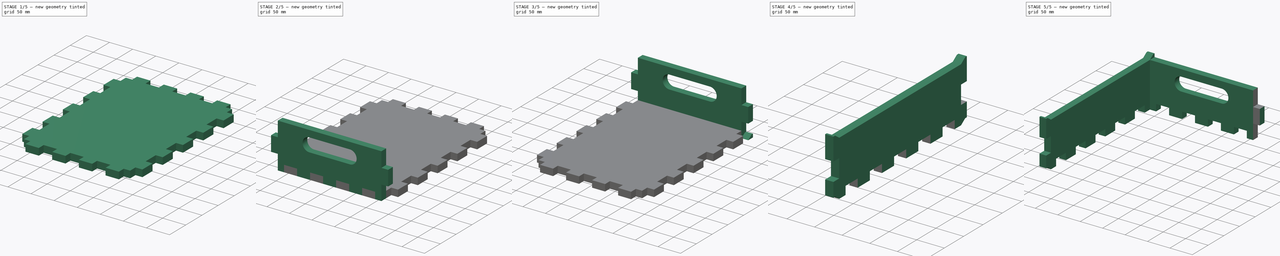
[diagram: build sequence overview — one tinted view per stage of 5, left to right]
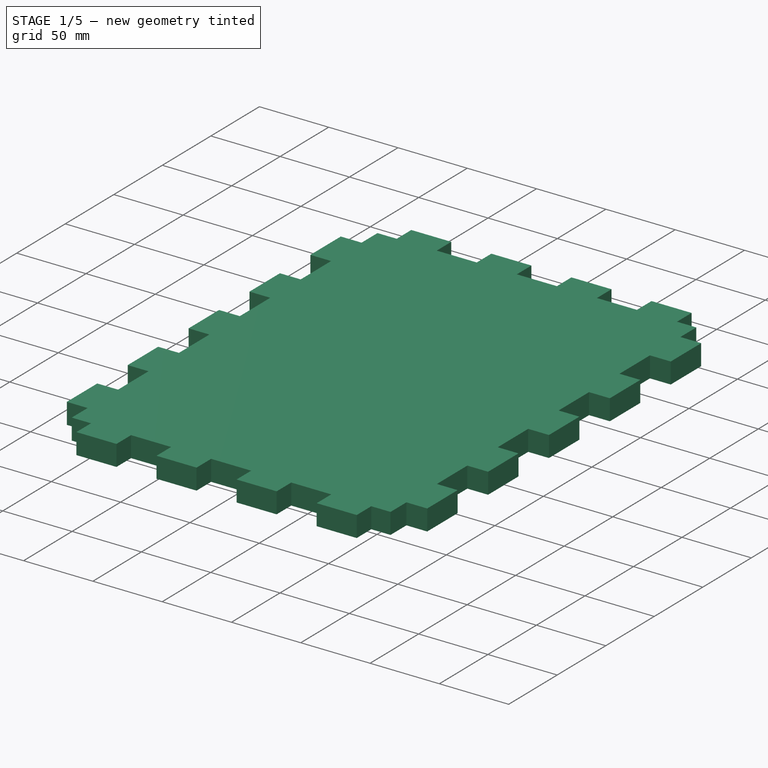
[diagram: stage 1 of 5 — iso view after this stage's code; geometry added in this stage tinted green]
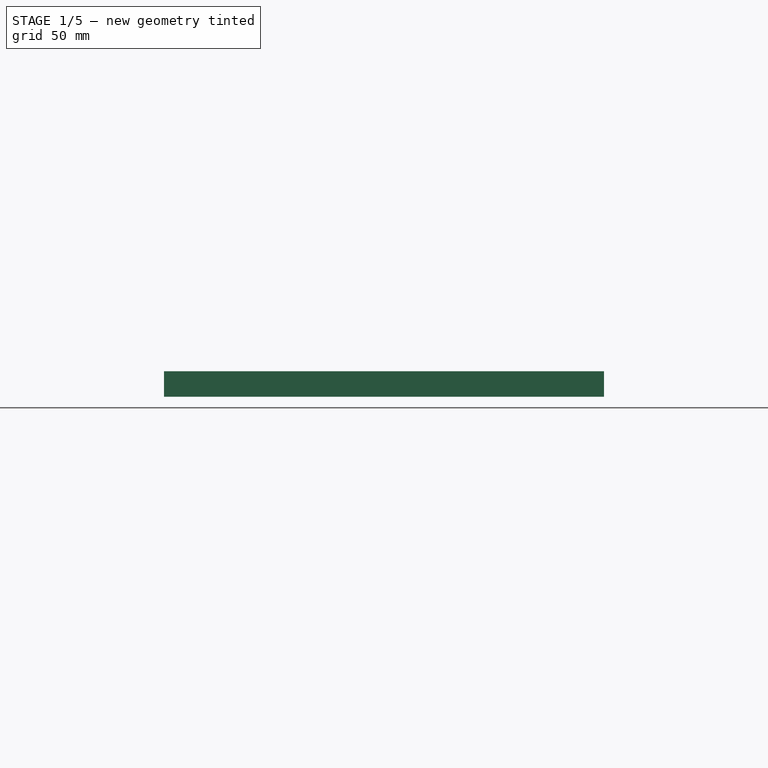
[diagram: stage 1 of 5 — front view after this stage's code; geometry added in this stage tinted green]
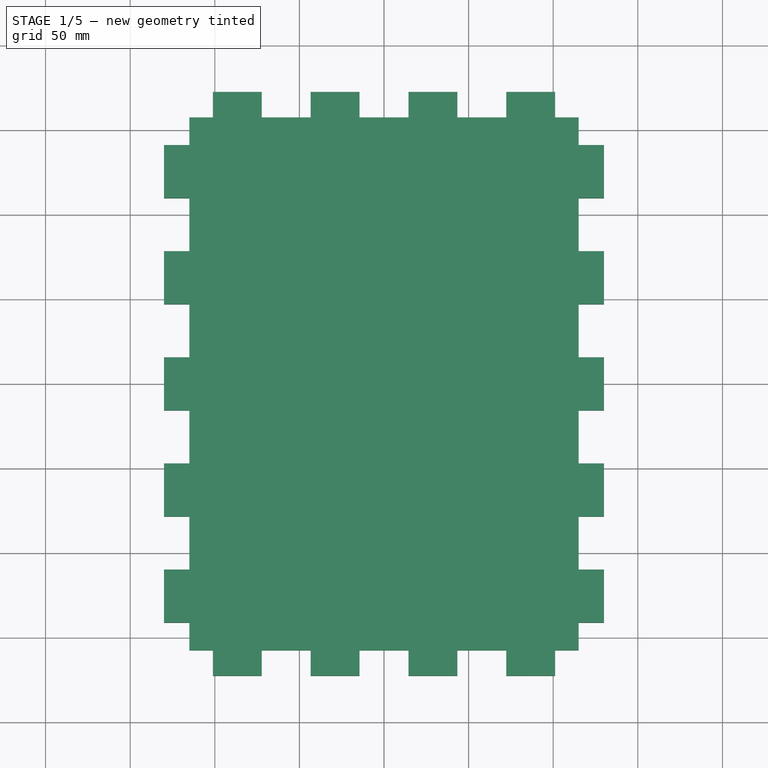
[diagram: stage 1 of 5 — top view after this stage's code; geometry added in this stage tinted green]
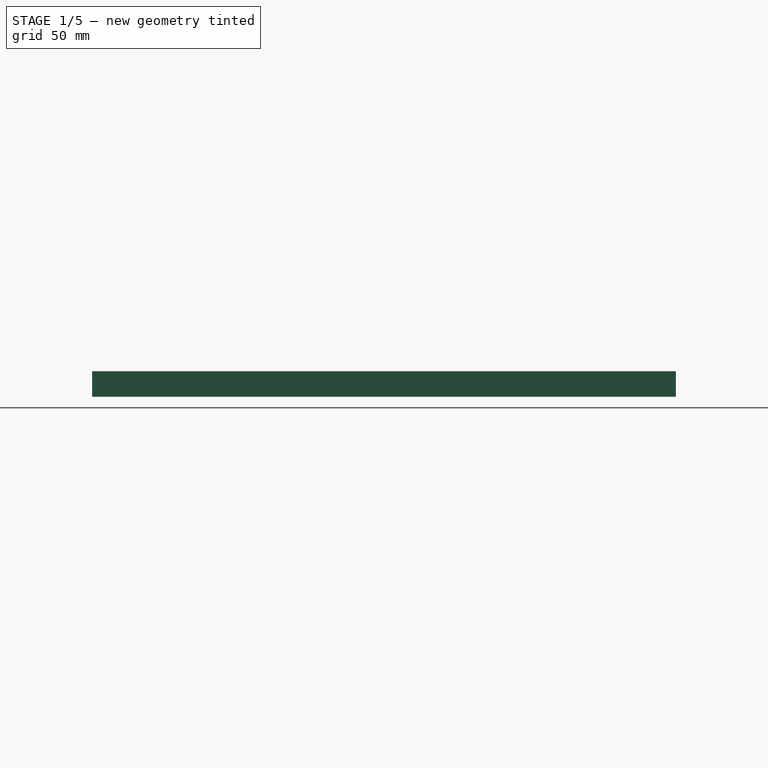
[diagram: stage 1 of 5 — right view after this stage's code; geometry added in this stage tinted green]
FCSTD DOCUMENT  (FreeCAD 0.20R29410 (Git))
Label: storage-box
License: Creative Commons Attribution-ShareAlike
LicenseURL: http://creativecommons.org/licenses/by-sa/4.0/
objects: Sketcher::SketchObject×7, Part::FeaturePython×7, PartDesign::LinearPattern×6, PartDesign::Pad×4, PartDesign::Body×4, Part::Mirroring×4, PartDesign::Pocket×3, PartDesign::MultiTransform×3, Part::Cut×2, Part::MultiFuse×2, App::FeaturePython×1, PartDesign::Fillet×1, Part::Compound×1
note: 52 computed .brp shape members not serialized (recipe doc carries the construction recipe); baked Part::Feature solids carry a one-line shape summary decoded from their .brp

FEATURE [App::FeaturePython] dd  label="Parameters"  # WARN: FeaturePython — macro-defined, semantics opaque (R4)
  DynamicData = Created with DynamicData (v2.46) workbench. | This is a simple container object built | for holding custom properties.
  ddHandle_heigth = 30
  ddHandle_width = 120
  ddHeigth = 100
  ddHeigth_seg = 33.3333
  ddLength = 345
  ddLength_seg = 31.3636
  ddLock_notch_size = 15
  ddMaterial_thickness = 15
  ddSegment_length = 28
  ddWidth = 260
  ddWidth_seg = 28.8889
  expr: ddHeigth_seg = ddHeigth / (round(ddHeigth / ddSegment_length / 2) * 2 - 1)
  expr: ddLength_seg = ddLength / (round(ddLength / ddSegment_length / 2) * 2 - 1)
  expr: ddWidth_seg = ddWidth / (round(ddWidth / ddSegment_length / 2) * 2 - 1)
FEATURE [Sketcher::SketchObject] Sketch
  FullyConstrained = true
  MapMode = 5
  Support = -> [XY_Plane]
  expr: Constraints[10] = dd.ddWidth
  expr: Constraints[11] = dd.ddLength
  sketch-geometry (5):
    g0: LineSegment StartX=130 StartY=-172.5 StartZ=0 EndX=130 EndY=172.5 EndZ=0
    g1: LineSegment StartX=130 StartY=172.5 StartZ=0 EndX=-130 EndY=172.5 EndZ=0
    g2: LineSegment StartX=-130 StartY=172.5 StartZ=0 EndX=-130 EndY=-172.5 EndZ=0
    g3: LineSegment StartX=-130 StartY=-172.5 StartZ=0 EndX=130 EndY=-172.5 EndZ=0
    g4: GeomPoint X=0 Y=0 Z=0
  constraints (12):
    c: Coincident(g0,g1)
    c: Coincident(g1,g2)
    c: Coincident(g2,g3)
    c: Coincident(g3,g0)
    c: Horizontal(g1)
    c: Horizontal(g3)
    c: Vertical(g0)
    c: Vertical(g2)
    c: Symmetric(g1,g0,g4)
    c: Coincident(g4,g-1)
    c: Distance(g1) = 260
    c: Distance(g0) = 345
FEATURE [PartDesign::Pad] Pad
  Direction = (0,0,1)
  Length = 15
  Length2 = 10
  Profile = -> Sketch
  ReferenceAxis = -> Sketch [N_Axis]
  Type = 0
  expr: Length = dd.ddMaterial_thickness
FEATURE [Sketcher::SketchObject] Sketch001
  FullyConstrained = true
  MapMode = 5
  Placement = pos=(0,0,15) rot=(0,0,1;0rad)
  Support = -> [Pad]
  expr: Constraints[10] = dd.ddLength / 2
  expr: Constraints[11] = dd.ddLength / 2 - dd.ddLength_seg
  expr: Constraints[8] = dd.ddWidth / 2
  expr: Constraints[9] = dd.ddWidth / 2 - dd.ddMaterial_thickness
  sketch-geometry (4):
    g0: LineSegment StartX=130 StartY=141.136 StartZ=0 EndX=115 EndY=141.136 EndZ=0
    g1: LineSegment StartX=115 StartY=141.136 StartZ=0 EndX=115 EndY=172.5 EndZ=0
    g2: LineSegment StartX=115 StartY=172.5 StartZ=0 EndX=130 EndY=172.5 EndZ=0
    g3: LineSegment StartX=130 StartY=172.5 StartZ=0 EndX=130 EndY=141.136 EndZ=0
  constraints (12):
    c: Coincident(g0,g1)
    c: Coincident(g1,g2)
    c: Coincident(g2,g3)
    c: Coincident(g3,g0)
    c: Horizontal(g0)
    c: Horizontal(g2)
    c: Vertical(g1)
    c: Vertical(g3)
    c: DistanceX(g-2,g0) = 130
    c: DistanceX(g-2,g0) = 115
    c: DistanceY(g-1,g1) = 172.5
    c: DistanceY(g-1,g0) = 141.136
FEATURE [Sketcher::SketchObject] Sketch002
  FullyConstrained = true
  MapMode = 5
  Placement = pos=(0,0,15) rot=(0,0,1;0rad)
  Support = -> [Pad]
  expr: Constraints[10] = dd.ddLength / 2
  expr: Constraints[11] = dd.ddLength / 2 - dd.ddMaterial_thickness
  expr: Constraints[8] = dd.ddWidth / 2
  expr: Constraints[9] = dd.ddWidth / 2 - dd.ddWidth_seg
  sketch-geometry (4):
    g0: LineSegment StartX=130 StartY=157.5 StartZ=0 EndX=101.111 EndY=157.5 EndZ=0
    g1: LineSegment StartX=101.111 StartY=157.5 StartZ=0 EndX=101.111 EndY=172.5 EndZ=0
    g2: LineSegment StartX=101.111 StartY=172.5 StartZ=0 EndX=130 EndY=172.5 EndZ=0
    g3: LineSegment StartX=130 StartY=172.5 StartZ=0 EndX=130 EndY=157.5 EndZ=0
  constraints (12):
    c: Coincident(g0,g1)
    c: Coincident(g1,g2)
    c: Coincident(g2,g3)
    c: Coincident(g3,g0)
    c: Horizontal(g0)
    c: Horizontal(g2)
    c: Vertical(g1)
    c: Vertical(g3)
    c: DistanceX(g-2,g0) = 130
    c: DistanceX(g-2,g0) = 101.111
    c: DistanceY(g-1,g1) = 172.5
    c: DistanceY(g-1,g0) = 157.5
FEATURE [PartDesign::Pocket] Pocket
  BaseFeature = -> Pad
  Direction = (0,0,-1)
  Length = 5
  Length2 = 5
  Profile = -> Sketch001
  ReferenceAxis = -> Sketch001 [N_Axis]
  Type = 1
FEATURE [PartDesign::LinearPattern] LinearPattern
  Direction = -> Y_Axis
  Length = 313.636
  Occurrences = 6
  Reversed = true
  expr: Length = dd.ddLength - dd.ddLength_seg
  expr: Occurrences = dd.ddLength / dd.ddLength_seg / 2
FEATURE [PartDesign::LinearPattern] LinearPattern001
  Direction = -> X_Axis
  Length = 245
  Occurrences = 2
  Reversed = true
  expr: Length = dd.ddWidth - dd.ddMaterial_thickness
FEATURE [PartDesign::MultiTransform] MultiTransform
  BaseFeature = -> Pocket
  Originals = -> [Pocket]
  Transformations = -> [LinearPattern,LinearPattern001]
FEATURE [PartDesign::Pocket] Pocket001
  BaseFeature = -> MultiTransform
  Direction = (0,0,-1)
  Length = 5
  Length2 = 5
  Profile = -> Sketch002
  ReferenceAxis = -> Sketch002 [N_Axis]
  Type = 1
FEATURE [PartDesign::LinearPattern] LinearPattern002
  Direction = -> X_Axis
  Length = 231.111
  Occurrences = 5
  Reversed = true
  expr: Length = dd.ddWidth - dd.ddWidth_seg
  expr: Occurrences = dd.ddWidth / dd.ddWidth_seg / 2
FEATURE [PartDesign::LinearPattern] LinearPattern003
  Direction = -> Y_Axis
  Length = 330
  Occurrences = 2
  Reversed = true
  expr: Length = dd.ddLength - dd.ddMaterial_thickness
FEATURE [PartDesign::MultiTransform] MultiTransform001
  BaseFeature = -> Pocket001
  Originals = -> [Pocket001]
  Transformations = -> [LinearPattern002,LinearPattern003]
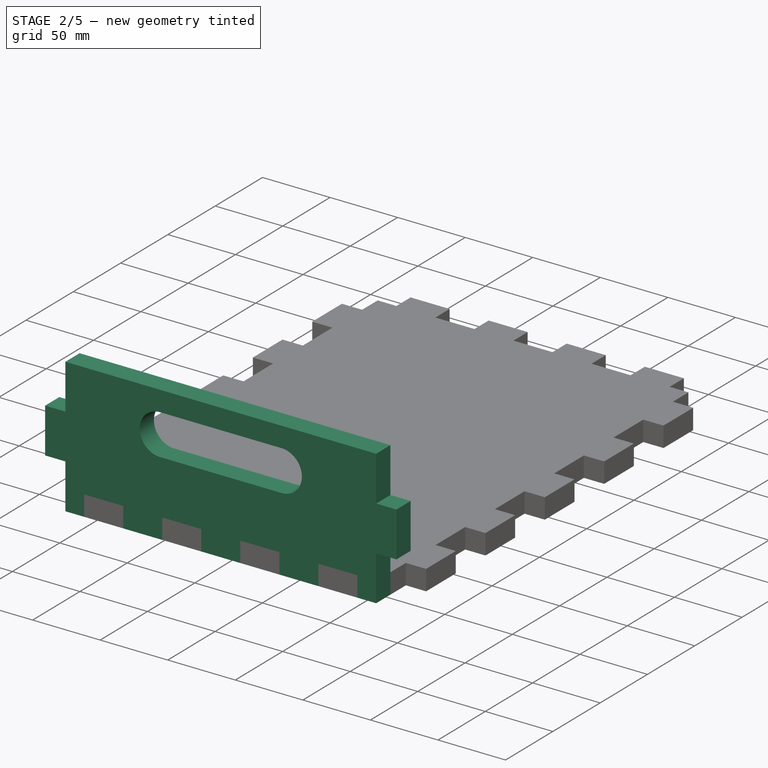
[diagram: stage 2 of 5 — iso view after this stage's code; geometry added in this stage tinted green]
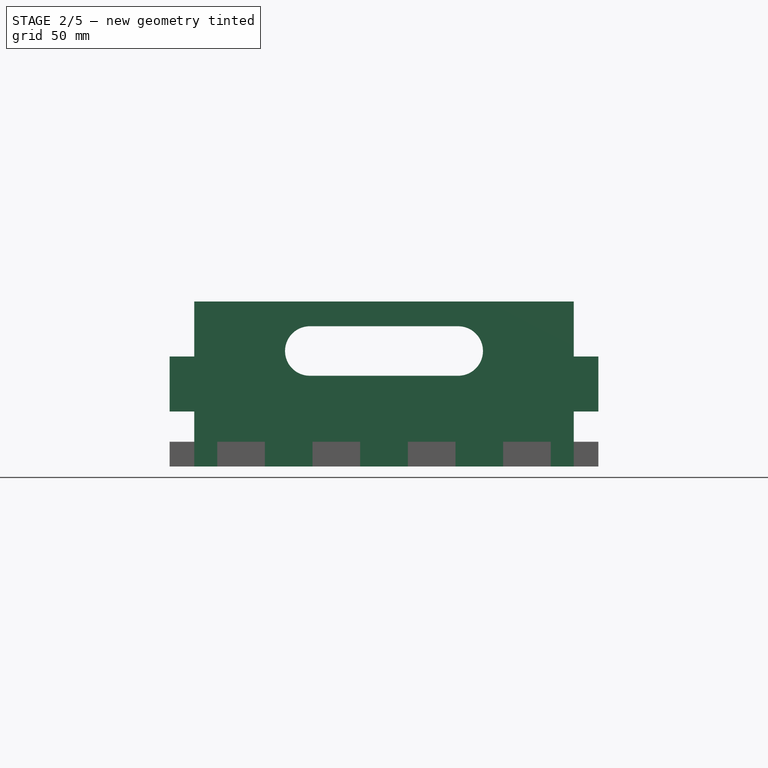
[diagram: stage 2 of 5 — front view after this stage's code; geometry added in this stage tinted green]
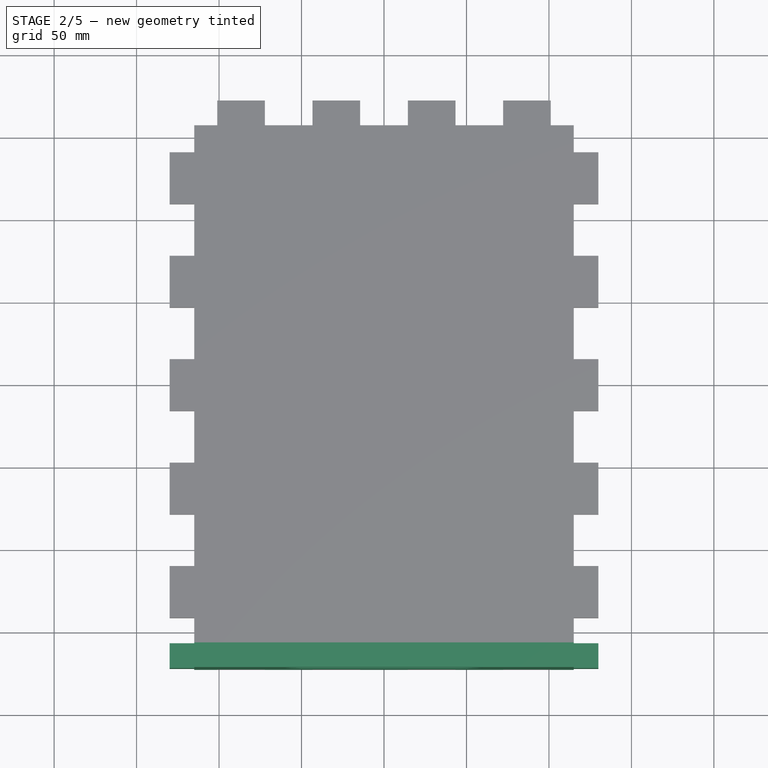
[diagram: stage 2 of 5 — top view after this stage's code; geometry added in this stage tinted green]
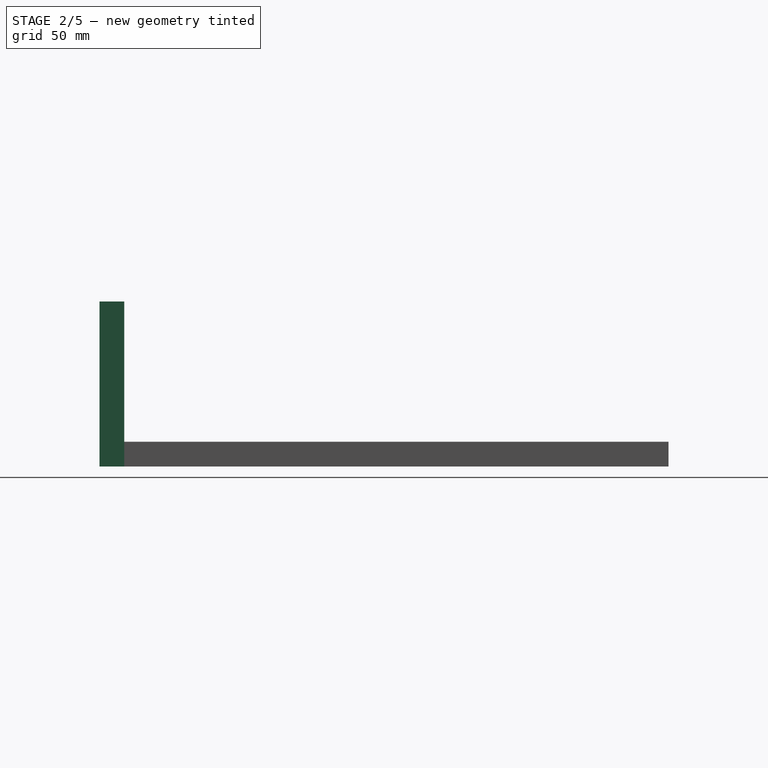
[diagram: stage 2 of 5 — right view after this stage's code; geometry added in this stage tinted green]
FEATURE [PartDesign::Body] Body  label="Bottom plate"
  Group = -> [Sketch,Pad,Sketch001,Sketch002,Pocket,MultiTransform,LinearPattern,LinearPattern001,Pocket001,MultiTransform001,LinearPattern002,LinearPattern003]
  Origin = -> Origin
  Tip = -> MultiTransform001
FEATURE [Sketcher::SketchObject] Sketch003
  FullyConstrained = true
  MapMode = 5
  Placement = pos=(0,0,0) rot=(1,0,0;1.5708rad)
  Support = -> [XZ_Plane001]
  expr: Constraints[14] = dd.ddHeigth
  expr: Constraints[15] = dd.ddWidth
  expr: Constraints[17] = dd.ddHandle_heigth
  expr: Constraints[18] = dd.ddHeigth - dd.ddHandle_heigth / 2 - dd.ddMaterial_thickness
  expr: Constraints[19] = dd.ddHandle_width - dd.ddHandle_heigth
  sketch-geometry (8):
    g0: LineSegment StartX=-130 StartY=0 StartZ=0 EndX=130 EndY=0 EndZ=0
    g1: LineSegment StartX=130 StartY=0 StartZ=0 EndX=130 EndY=100 EndZ=0
    g2: LineSegment StartX=130 StartY=100 StartZ=0 EndX=-130 EndY=100 EndZ=0
    g3: LineSegment StartX=-130 StartY=100 StartZ=0 EndX=-130 EndY=0 EndZ=0
    g4: ArcOfCircle CenterX=-45 CenterY=70 CenterZ=0 NormalX=0 NormalY=0 NormalZ=1 AngleXU=0 Radius=15 StartAngle=1.5708 EndAngle=4.71239
    g5: ArcOfCircle CenterX=45 CenterY=70 CenterZ=0 NormalX=0 NormalY=0 NormalZ=1 AngleXU=0 Radius=15 StartAngle=4.71239 EndAngle=7.85398
    g6: LineSegment StartX=-45 StartY=55 StartZ=0 EndX=45 EndY=55 EndZ=0
    g7: LineSegment StartX=45 StartY=85 StartZ=0 EndX=-45 EndY=85 EndZ=0
  constraints (20):
    c: Coincident(g0,g1)
    c: Coincident(g1,g2)
    c: Coincident(g2,g3)
    c: Coincident(g3,g0)
    c: Horizontal(g0)
    c: Vertical(g1)
    c: Vertical(g3)
    c: Symmetric(g2,g1,g-2)
    c: PointOnObject(g0,g-1)
    c: Tangent(g4,g6) = -1.5708
    c: Tangent(g6,g5) = -1.5708
    c: Tangent(g5,g7) = -1.5708
    c: Tangent(g7,g4) = -1.5708
    c: Equal(g4,g5)
    c: Distance(g1) = 100
    c: Distance(g2) = 260
    c: Symmetric(g4,g5,g-2)
    c: Diameter(g4) = 30
    c: DistanceY(g-1,g4) = 70
    c: Distance(g4,g5) = 90
FEATURE [PartDesign::Pad] Pad001
  Direction = (0,-1,-2e-16)
  Length = 15
  Length2 = 10
  Placement = pos=(0,0,0) rot=(1,0,0;1.5708rad)
  Profile = -> Sketch003
  ReferenceAxis = -> Sketch003 [N_Axis]
  Reversed = true
  Type = 0
  expr: Length = dd.ddMaterial_thickness
FEATURE [Sketcher::SketchObject] Sketch004
  FullyConstrained = true
  MapMode = 5
  Placement = pos=(0,0,0) rot=(1,0,0;1.5708rad)
  Support = -> [XZ_Plane001]
  expr: Constraints[10] = dd.ddWidth / 2 - dd.ddMaterial_thickness
  expr: Constraints[11] = dd.ddHeigth_seg
  expr: Constraints[9] = dd.ddWidth / 2
  sketch-geometry (4):
    g0: LineSegment StartX=130 StartY=0 StartZ=0 EndX=115 EndY=0 EndZ=0
    g1: LineSegment StartX=115 StartY=0 StartZ=0 EndX=115 EndY=33.3333 EndZ=0
    g2: LineSegment StartX=115 StartY=33.3333 StartZ=0 EndX=130 EndY=33.3333 EndZ=0
    g3: LineSegment StartX=130 StartY=33.3333 StartZ=0 EndX=130 EndY=0 EndZ=0
  constraints (12):
    c: Coincident(g0,g1)
    c: Coincident(g1,g2)
    c: Coincident(g2,g3)
    c: Coincident(g3,g0)
    c: Horizontal(g0)
    c: Horizontal(g2)
    c: Vertical(g1)
    c: Vertical(g3)
    c: PointOnObject(g0,g-1)
    c: DistanceX(g-2,g0) = 130
    c: DistanceX(g-2,g0) = 115
    c: DistanceY(g-1,g2) = 33.3333
FEATURE [PartDesign::Pocket] Pocket002
  BaseFeature = -> Pad001
  Direction = (0,1,2e-16)
  Length = 5
  Length2 = 5
  Placement = pos=(0,0,0) rot=(1,0,0;1.5708rad)
  Profile = -> Sketch004
  ReferenceAxis = -> Sketch004 [N_Axis]
  Type = 1
FEATURE [PartDesign::LinearPattern] LinearPattern004
  Direction = -> Z_Axis001
  Length = 66.6667
  Occurrences = 2
  Placement = pos=(0,0,0) rot=(1,0,0;1.5708rad)
  expr: Length = dd.ddHeigth - dd.ddHeigth_seg
  expr: Occurrences = dd.ddHeigth / dd.ddHeigth_seg / 2
FEATURE [PartDesign::LinearPattern] LinearPattern005
  Direction = -> X_Axis001
  Length = 245
  Occurrences = 2
  Placement = pos=(0,0,0) rot=(1,0,0;1.5708rad)
  Reversed = true
  expr: Length = dd.ddWidth - dd.ddMaterial_thickness
FEATURE [PartDesign::MultiTransform] MultiTransform002
  BaseFeature = -> Pocket002
  Originals = -> [Pocket002]
  Placement = pos=(0,0,0) rot=(1,0,0;1.5708rad)
  Transformations = -> [LinearPattern004,LinearPattern005]
FEATURE [PartDesign::Body] Body001  label="Front plate"
  Group = -> [Sketch003,Pad001,Sketch004,Pocket002,MultiTransform002,LinearPattern004,LinearPattern005]
  Origin = -> Origin001
  Placement = pos=(0,-172.5,0) rot=(0,0,1;0rad)
  Tip = -> MultiTransform002
  expr: .Placement.Base.y = dd.ddLength / -2
FEATURE [Part::FeaturePython] Clone  label="Bottom plate001"  # Draft clone (typed FeaturePython)
  AttacherType = Attacher::AttachEngine3D
  Fuse = false
  Objects = -> [Body]
  Scale = (1,1,1)
FEATURE [Part::Cut] Cut  label="Front plate - with segments cut"
  Base = -> Body001
  Refine = true
  Tool = -> Clone
FEATURE [Part::FeaturePython] Clone004  label="Bottom plate002"  # Draft clone (typed FeaturePython)
  AttacherType = Attacher::AttachEngine3D
  Fuse = false
  Objects = -> [Body]
  Scale = (1,1,1)
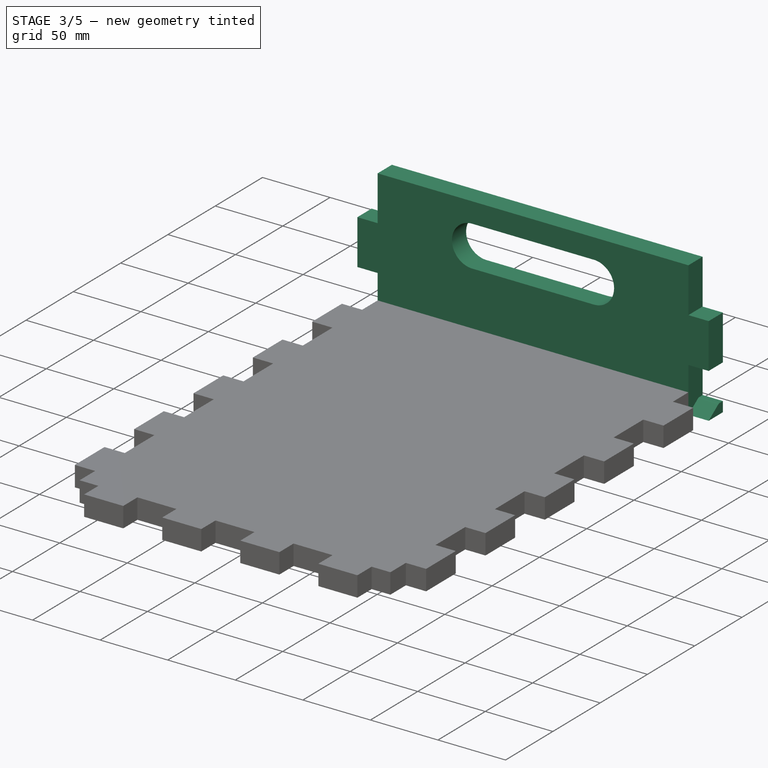
[diagram: stage 3 of 5 — iso view after this stage's code; geometry added in this stage tinted green]
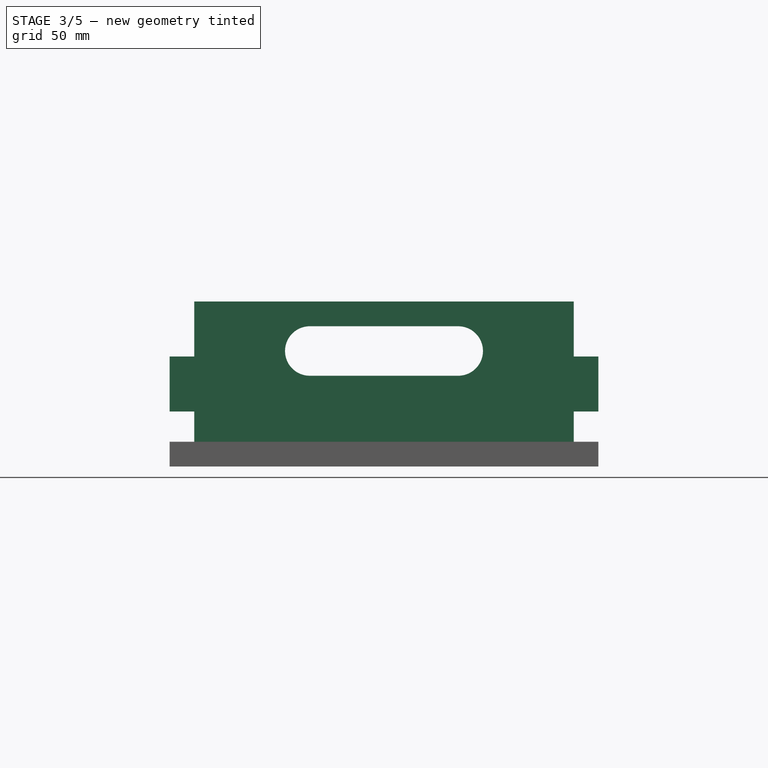
[diagram: stage 3 of 5 — front view after this stage's code; geometry added in this stage tinted green]
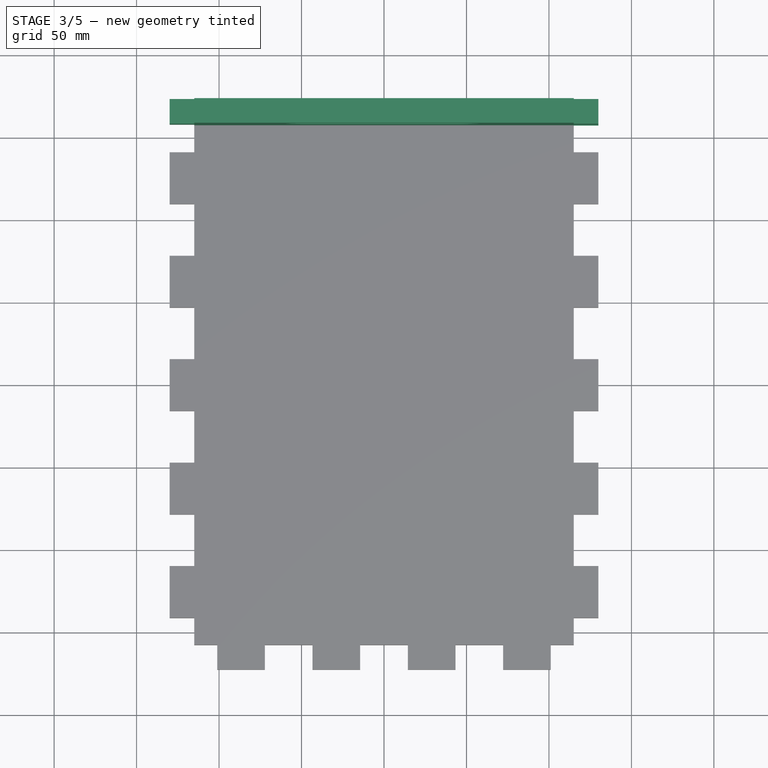
[diagram: stage 3 of 5 — top view after this stage's code; geometry added in this stage tinted green]
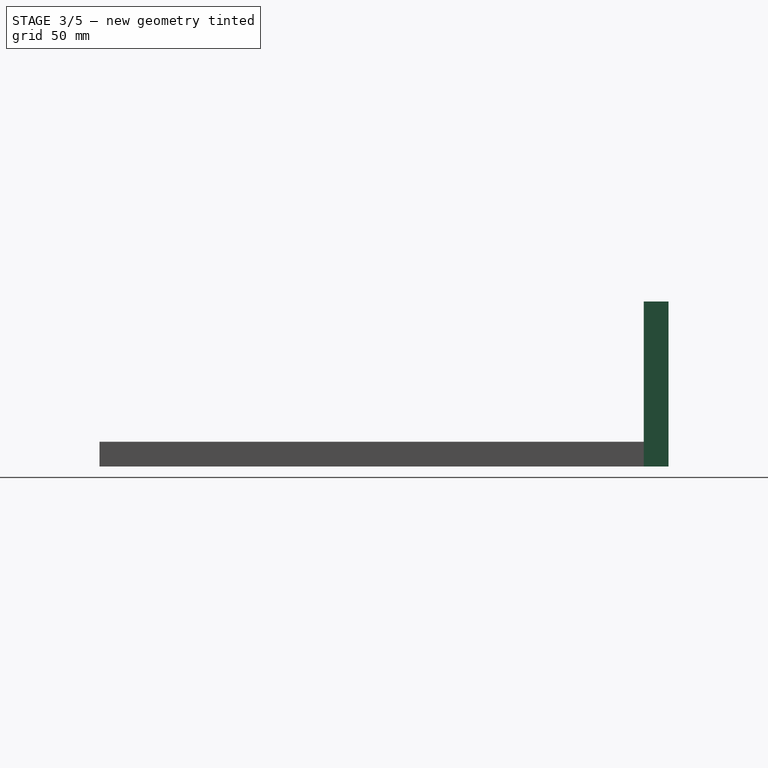
[diagram: stage 3 of 5 — right view after this stage's code; geometry added in this stage tinted green]
FEATURE [Sketcher::SketchObject] Sketch005
  FullyConstrained = true
  MapMode = 5
  Placement = pos=(0,0,0) rot=(1,0,0;1.5708rad)
  Support = -> [XZ_Plane002]
  expr: Constraints[10] = -dd.ddLock_notch_size
  expr: Constraints[9] = dd.ddLock_notch_size / 2
  sketch-geometry (4):
    g0: LineSegment StartX=0 StartY=0 StartZ=0 EndX=0 EndY=7.5 EndZ=0
    g1: LineSegment StartX=0 StartY=7.5 StartZ=0 EndX=-4.28889 EndY=7.5 EndZ=0
    g2: LineSegment StartX=-4.28889 StartY=7.5 StartZ=0 EndX=-15 EndY=0 EndZ=0
    g3: LineSegment StartX=-15 StartY=0 StartZ=0 EndX=0 EndY=0 EndZ=0
  constraints (11):
    c: Coincident(g-1,g0)
    c: PointOnObject(g0,g-2)
    c: Coincident(g0,g1)
    c: Horizontal(g1)
    c: Coincident(g1,g2)
    c: Coincident(g2,g3)
    c: Coincident(g3,g0)
    c: Horizontal(g3)
    c: Angle(g-1,g2) = 0.610865
    c: DistanceY(g-1,g0) = 7.5
    c: DistanceX(g-2,g2) = -15
FEATURE [PartDesign::Pad] Pad002
  Direction = (0,-1,-2e-16)
  Length = 15
  Length2 = 10
  Placement = pos=(0,0,0) rot=(1,0,0;1.5708rad)
  Profile = -> Sketch005
  ReferenceAxis = -> Sketch005 [N_Axis]
  Reversed = true
  Type = 0
  expr: Length = dd.ddMaterial_thickness
FEATURE [PartDesign::Fillet] Fillet
  Base = -> Pad002 [Edge5]
  BaseFeature = -> Pad002
  Placement = pos=(0,0,0) rot=(1,0,0;1.5708rad)
  Radius = 3.2
  SupportTransform = false
  UseAllEdges = false
FEATURE [PartDesign::Body] Body002  label="Lock notch"
  Group = -> [Sketch005,Pad002,Fillet]
  Origin = -> Origin002
  Tip = -> Fillet
FEATURE [Part::FeaturePython] Clone001  label="Lock notch001"  # Draft clone (typed FeaturePython)
  AttacherType = Attacher::AttachEngine3D
  Fuse = false
  Objects = -> [Body002]
  Placement = pos=(130,172.5,0) rot=(0,0,1;1.5708rad)
  Scale = (1,1,1)
  expr: .Placement.Base.x = dd.ddWidth / 2
  expr: .Placement.Base.y = dd.ddLength / 2
FEATURE [PartDesign::Body] Body003  label="Side plate"
  Group = -> [Sketch006,Pad003]
  Origin = -> Origin003
  Placement = pos=(130,0,0) rot=(0,0,1;0rad)
  Tip = -> Pad003
  expr: .Placement.Base.x = dd.ddWidth / 2
FEATURE [Part::FeaturePython] Clone003  label="Front plate - with segments cut001"  # Draft clone (typed FeaturePython)
  AttacherType = Attacher::AttachEngine3D
  Fuse = false
  Objects = -> [Cut]
  Scale = (1,1,1)
FEATURE [Part::Mirroring] Part__Mirroring001  label="Front plate - with segments cut001 (Mirror #2)"
  Base = (0,0,0)
  Normal = (0,1,0)
  Source = -> Clone003
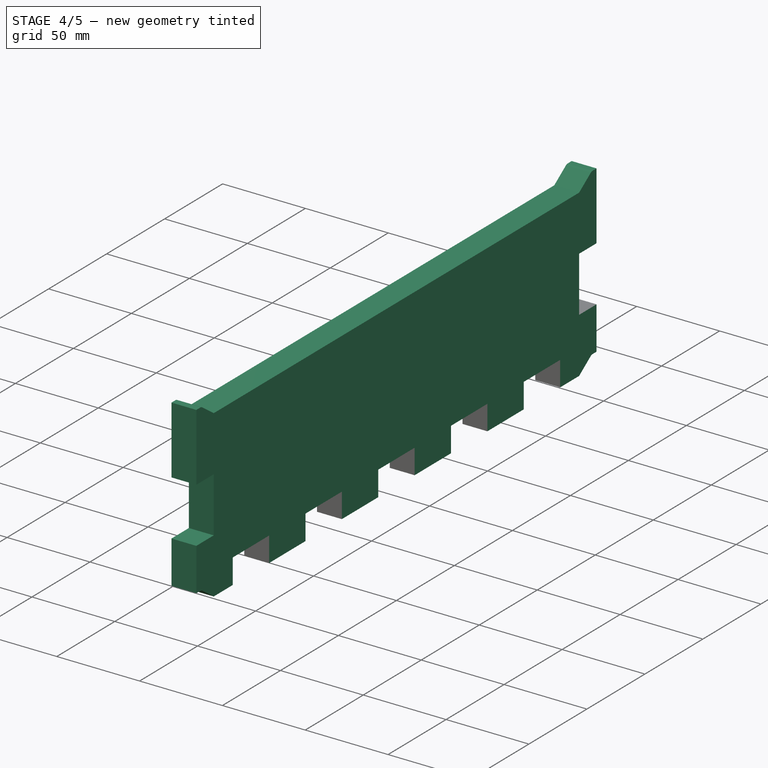
[diagram: stage 4 of 5 — iso view after this stage's code; geometry added in this stage tinted green]
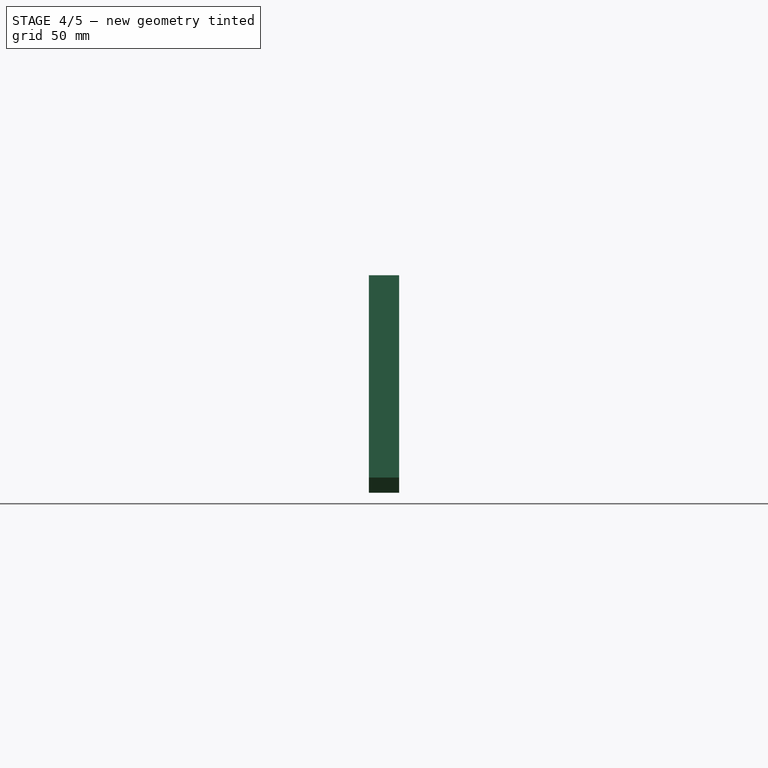
[diagram: stage 4 of 5 — front view after this stage's code; geometry added in this stage tinted green]
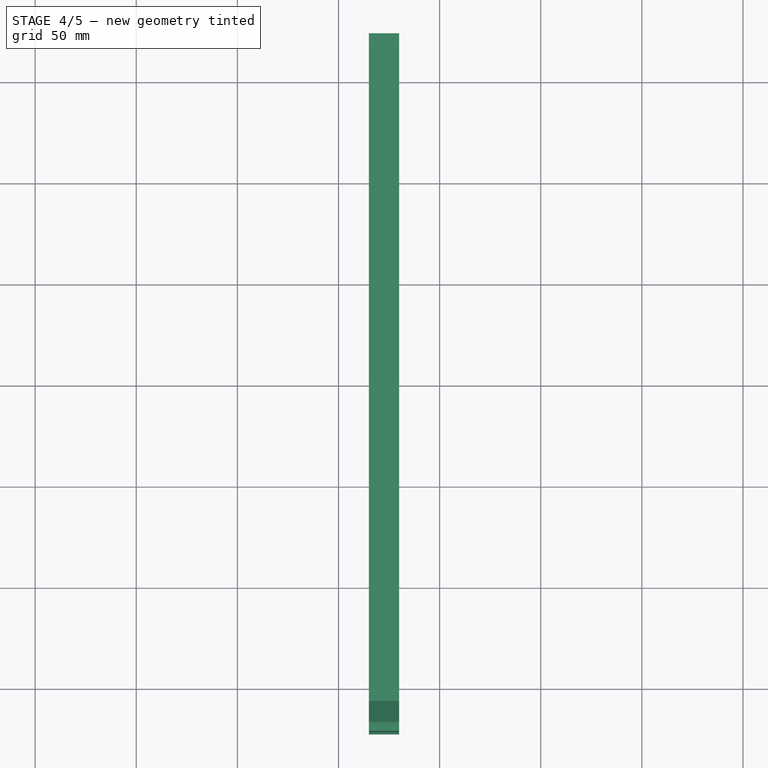
[diagram: stage 4 of 5 — top view after this stage's code; geometry added in this stage tinted green]
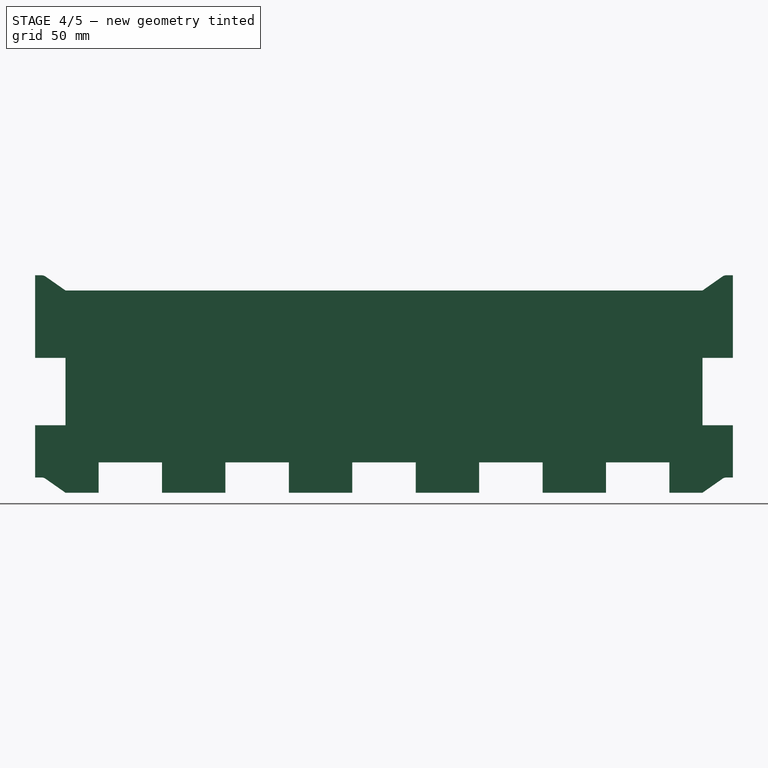
[diagram: stage 4 of 5 — right view after this stage's code; geometry added in this stage tinted green]
FEATURE [Part::Mirroring] Part__Mirroring  label="Lock notch001 (Mirror #1)"
  Base = (0,0,0)
  Normal = (0,1,0)
  Source = -> Clone001
FEATURE [Part::Compound] Compound
  Links = -> [Part__Mirroring,Clone001]
FEATURE [Part::FeaturePython] Clone002  label="Compound001"  # Draft clone (typed FeaturePython)
  AttacherType = Attacher::AttachEngine3D
  Fuse = false
  Objects = -> [Compound]
  Placement = pos=(0,0,100) rot=(0,0,1;0rad)
  Scale = (1,1,1)
  expr: .Placement.Base.z = dd.ddHeigth
FEATURE [Sketcher::SketchObject] Sketch006
  FullyConstrained = true
  MapMode = 5
  Placement = pos=(0,0,0) rot=(0.57735,0.57735,0.57735;2.0944rad)
  Support = -> [YZ_Plane003]
  expr: Constraints[7] = dd.ddHeigth
  expr: Constraints[9] = dd.ddLength
  sketch-geometry (4):
    g0: LineSegment StartX=-172.5 StartY=0 StartZ=0 EndX=172.5 EndY=0 EndZ=0
    g1: LineSegment StartX=172.5 StartY=0 StartZ=0 EndX=172.5 EndY=100 EndZ=0
    g2: LineSegment StartX=172.5 StartY=100 StartZ=0 EndX=-172.5 EndY=100 EndZ=0
    g3: LineSegment StartX=-172.5 StartY=100 StartZ=0 EndX=-172.5 EndY=0 EndZ=0
  constraints (11):
    c: Coincident(g0,g1)
    c: Coincident(g1,g2)
    c: Coincident(g2,g3)
    c: Coincident(g3,g0)
    c: Horizontal(g0)
    c: Vertical(g1)
    c: Vertical(g3)
    c: DistanceY(g-1,g1) = 100
    c: PointOnObject(g0,g-1)
    c: Distance(g2) = 345
    c: Symmetric(g2,g1,g-2)
FEATURE [PartDesign::Pad] Pad003
  Direction = (1,-2e-16,3e-16)
  Length = 15
  Length2 = 10
  Placement = pos=(0,0,0) rot=(0.57735,0.57735,0.57735;2.0944rad)
  Profile = -> Sketch006
  ReferenceAxis = -> Sketch006 [N_Axis]
  Reversed = true
  Type = 0
  expr: Length = dd.ddMaterial_thickness
FEATURE [Part::MultiFuse] Fusion
  Refine = true
  Shapes = -> [Part__Mirroring001,Clone003,Clone004,Compound]
FEATURE [Part::Cut] Cut001
  Base = -> Body003
  Tool = -> Fusion
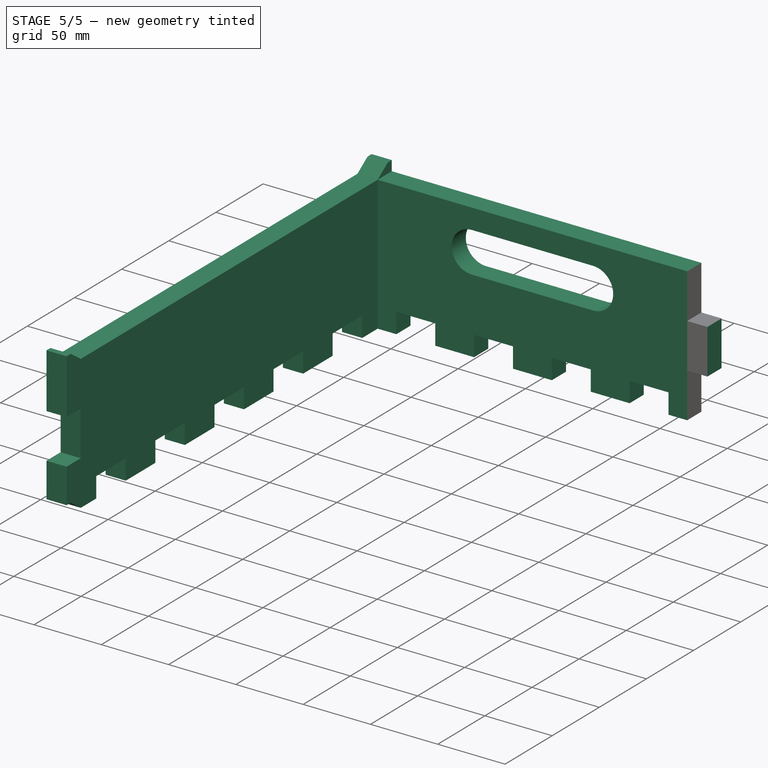
[diagram: stage 5 of 5 — iso view after this stage's code; geometry added in this stage tinted green]
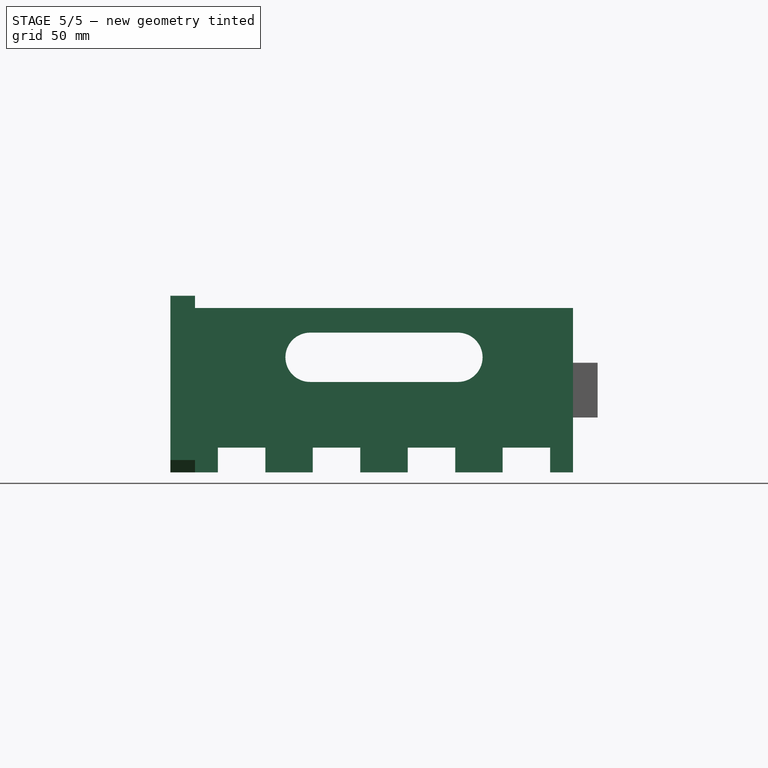
[diagram: stage 5 of 5 — front view after this stage's code; geometry added in this stage tinted green]
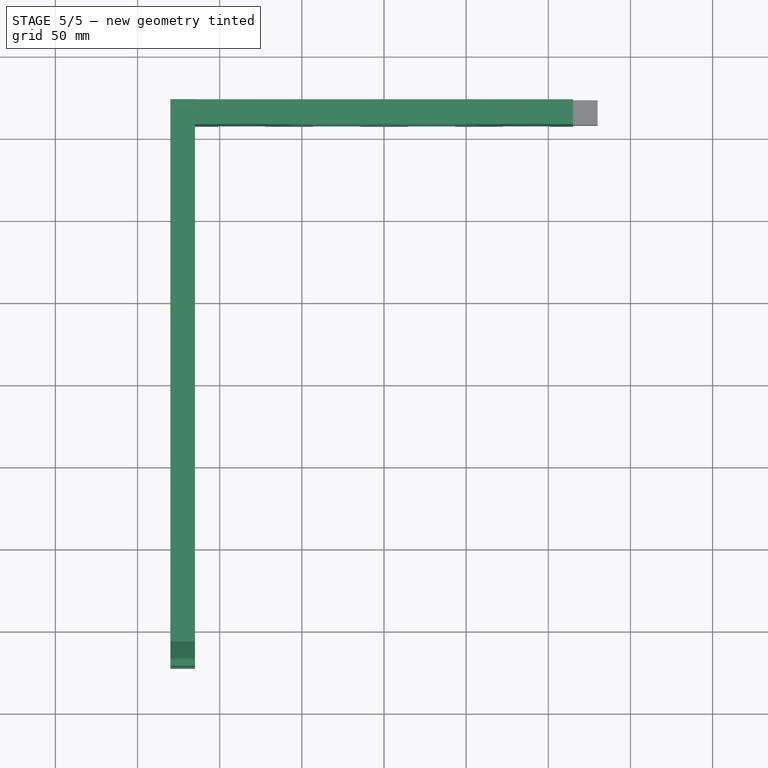
[diagram: stage 5 of 5 — top view after this stage's code; geometry added in this stage tinted green]
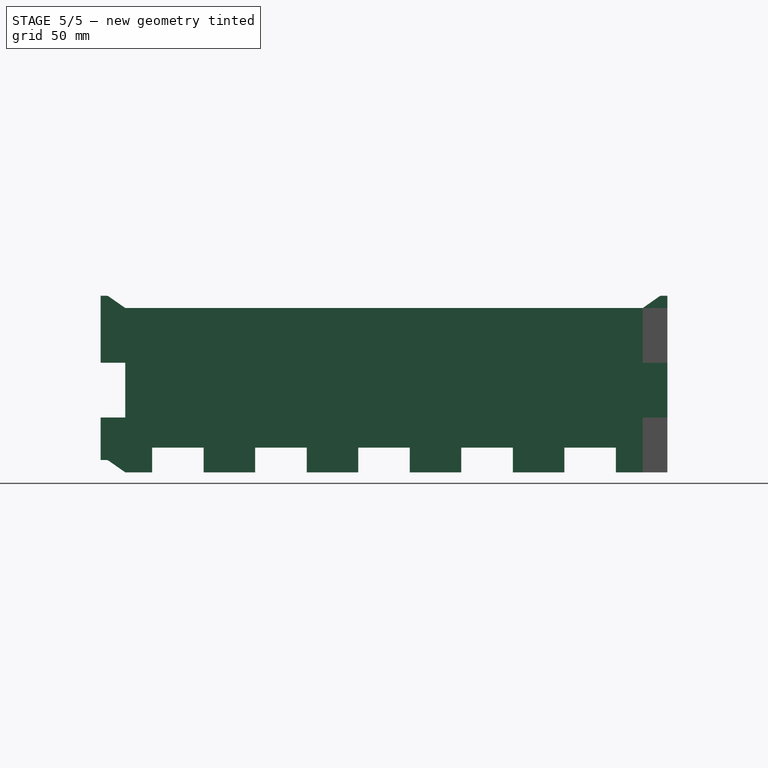
[diagram: stage 5 of 5 — right view after this stage's code; geometry added in this stage tinted green]
FEATURE [Part::MultiFuse] Fusion001  label="Side plate - with segments and notch"
  Refine = true
  Shapes = -> [Cut001,Clone002]
FEATURE [Part::FeaturePython] Clone005  label="Front plate - with segments cut002"  # Draft clone (typed FeaturePython)
  AttacherType = Attacher::AttachEngine3D
  Fuse = false
  Objects = -> [Cut]
  Scale = (1,1,1)
FEATURE [Part::FeaturePython] Clone006  label="Side plate - with segments and notch001"  # Draft clone (typed FeaturePython)
  AttacherType = Attacher::AttachEngine3D
  Fuse = false
  Objects = -> [Fusion001]
  Scale = (1,1,1)
FEATURE [Part::Mirroring] Part__Mirroring002  label="Front plate - with segments cut002 (Mirror #3)"
  Base = (0,0,0)
  Normal = (0,1,0)
  Source = -> Clone005
FEATURE [Part::Mirroring] Part__Mirroring003  label="Side plate - with segments and notch001 (Mirror #4)"
  Base = (0,0,0)
  Normal = (1,0,0)
  Source = -> Clone006
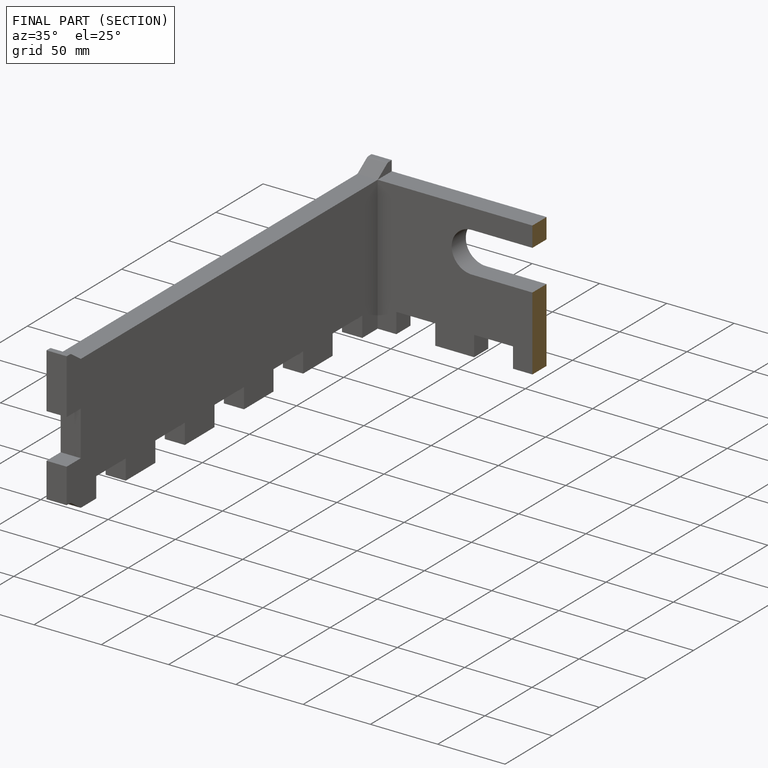
[diagram: finished part — half-section view (interior)]
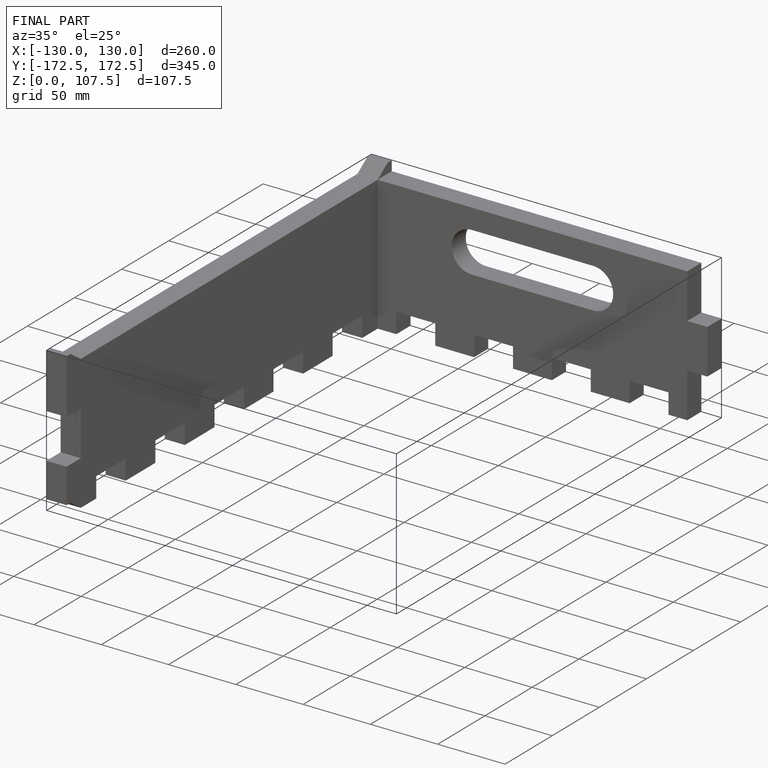
[diagram: finished part — iso view with bounding-box wireframe]
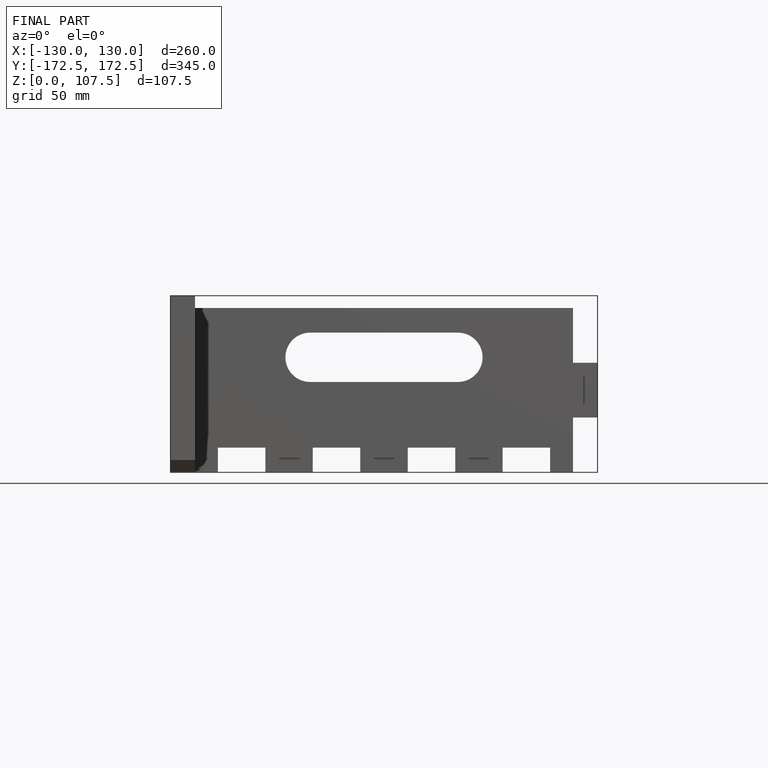
[diagram: finished part — front view with bounding-box wireframe]
